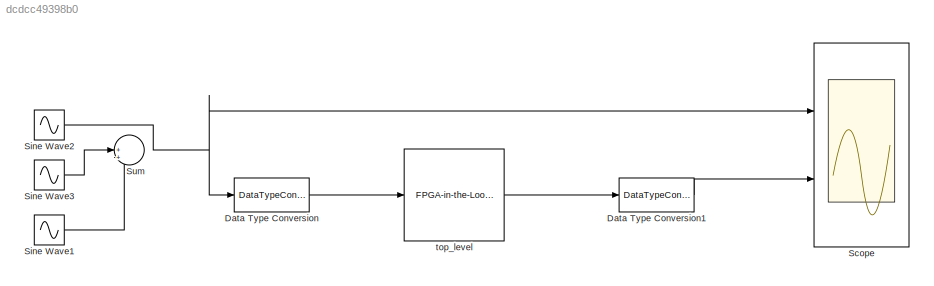
MODEL slx_dcdcc49398b0
KIND model
CONFIG AbsTol = auto
CONFIG EnableMultiTasking = off
CONFIG FixedStep = auto
CONFIG MaxStep = auto
CONFIG MinStep = auto
CONFIG RelTol = 1e-3
CONFIG SampleTimeConstraint = Unconstrained
CONFIG Solver = VariableStepDiscrete
CONFIG SolverName = VariableStepDiscrete
CONFIG StartTime = 0.0
CONFIG StopTime = 10.0
BLOCK [DataTypeConversion] Data Type Conversion
  OutDataTypeStr = fixdt(1,32,9)
  RndMeth = Floor
  SaturateOnIntegerOverflow = off
BLOCK [DataTypeConversion] Data Type Conversion1
  OutDataTypeStr = double
  RndMeth = Floor
  SaturateOnIntegerOverflow = off
BLOCK [Scope] Scope
  NumInputPorts = 2
  Ports = [2]
  ScopeSpecificationString = Simulink.scopes.TimeScopeBlockCfg('CurrentConfiguration', extmgr.ConfigurationSet(extmgr.Configuration('Core','General UI',true),extmgr.Configuration('Core','Source UI',true),extmgr.Configuration('Sources','WiredSimulink',true),extmgr.Configuration('Visuals','Time Domain',true,'SerializedDisplays',{struct('MinYLimReal','-25.00000','MaxYLimReal','25.00000','YLabelReal','','MinYLimMag','0.00000','Ma...<+2132ch>
BLOCK [Sin] Sine Wave1
  Amplitude = 20
  Frequency = 10
  Phase = 3.14159
  Ports = [0, 1]
  SampleTime = 5e-4
BLOCK [Sin] Sine Wave2
  Amplitude = 20
  Frequency = 20
  Ports = [0, 1]
  SampleTime = 5e-4
BLOCK [Sin] Sine Wave3
  Amplitude = 20
  Frequency = 100
  Ports = [0, 1]
  SampleTime = 5e-4
BLOCK [Sum] Sum
  IconShape = round
  InputSameDT = off
  Inputs = |+++
  OutDataTypeStr = Inherit: Inherit via internal rule
  Ports = [3, 1]
  SaturateOnIntegerOverflow = off
BLOCK [Reference] top_level  REF=fillib/FPGA-in-the-Loop (FIL)
  Ports = [1, 1]
  SourceBlock = fillib/FPGA-in-the-Loop (FIL)
  SourceType = FPGA-in-the-Loop (FIL)
  UserDataPersistent = on
LINE Data Type Conversion1:1 -> Scope:2
LINE Data Type Conversion:1 -> top_level:1
LINE Sine Wave1:1 -> Sum:3
NET Sine Wave2:1 -> Data Type Conversion:1, Scope:1
LINE Sine Wave3:1 -> Sum:2
LINE top_level:1 -> Data Type Conversion1:1
note: NET lines group one-source signal fan-out (src -> all destinations, sorted); 1:1 wires keep LINE
